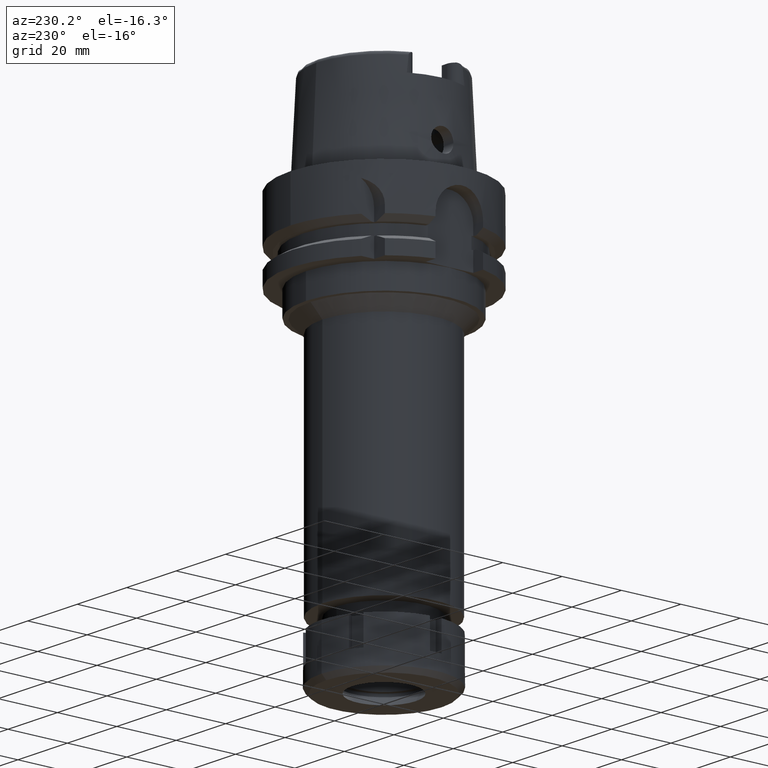
[diagram: clean part render]
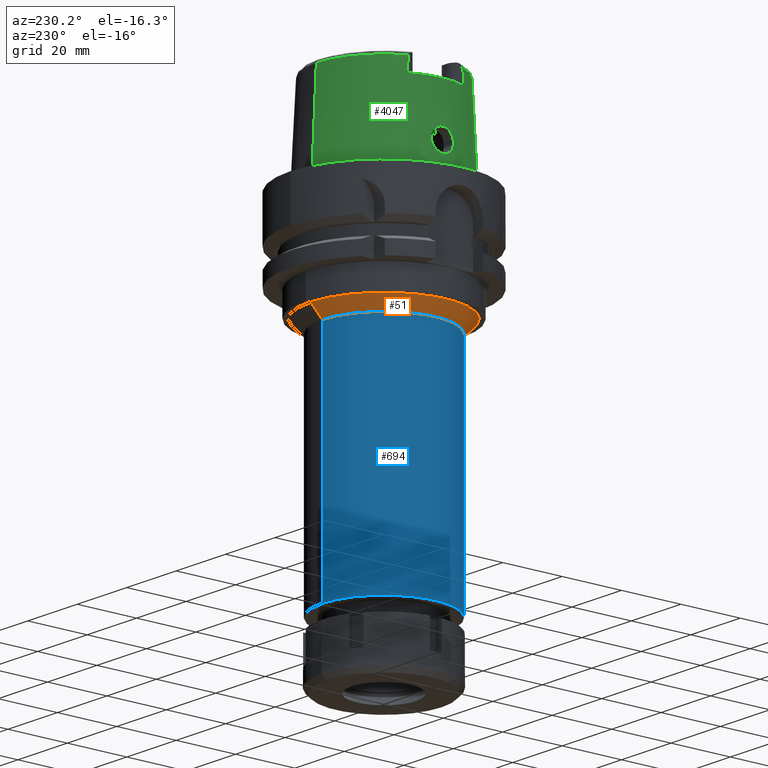
[diagram: same view with three faces highlighted in distinct colors, each labeled with its STEP entity id]
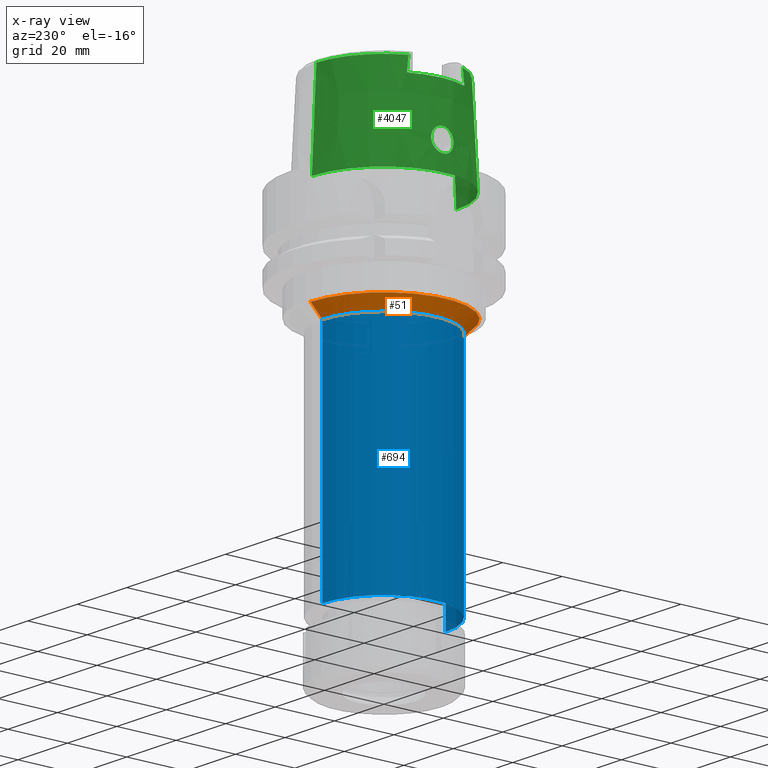
[diagram: x-ray of the same camera — body ghosted, the three highlighted faces saturated]
A machine part, auxiliary view with three faces highlighted in distinct colors.
The next image is the same camera in x-ray (body ghosted, the three faces saturated) — at least one of them is partly hidden behind the body in this view.
Their STEP definitions:

[orange] entity #51 — the highlighted conical surface has half-angle 45 deg.
#51 = ADVANCED_FACE ( 'NONE', ( #1762 ), #826, .T. ) ;
#122 = EDGE_LOOP ( 'NONE', ( #4546, #2845, #656, #3746 ) ) ;
#131 = CARTESIAN_POINT ( 'NONE',  ( 0.0000000000000000000, 20.75000000000000000, -38.00000000000000000 ) ) ;
#173 = CARTESIAN_POINT ( 'NONE',  ( 0.0000000000000000000, 24.75000000000000000, -34.00000000000000000 ) ) ;
#246 = VECTOR ( 'NONE', #2101, 1000.000000000000114 ) ;
#434 = CARTESIAN_POINT ( 'NONE',  ( 0.0000000000000000000, -20.75000000000000000, -38.00000000000000000 ) ) ;
#625 = DIRECTION ( 'NONE',  ( 0.0000000000000000000, -1.000000000000000000, 0.0000000000000000000 ) ) ;
#656 = ORIENTED_EDGE ( 'NONE', *, *, #6002, .T. ) ;
#826 = CONICAL_SURFACE ( 'NONE', #2184, 22.75000000000000000, 0.7853981633972997312 ) ;
#990 = CARTESIAN_POINT ( 'NONE',  ( 0.0000000000000000000, 0.0000000000000000000, -34.00000000000000000 ) ) ;
#1133 = CIRCLE ( 'NONE', #5057, 20.75000000000000000 ) ;
#1162 = EDGE_CURVE ( 'NONE', #4443, #2740, #1133, .T. ) ;
#1227 = CARTESIAN_POINT ( 'NONE',  ( 0.0000000000000000000, 24.75000000000000000, -34.00000000000000000 ) ) ;
#1371 = CARTESIAN_POINT ( 'NONE',  ( 0.0000000000000000000, -24.75000000000000000, -34.00000000000000000 ) ) ;
#1473 = CARTESIAN_POINT ( 'NONE',  ( 0.0000000000000000000, 0.0000000000000000000, -36.00000000000000000 ) ) ;
#1530 = VECTOR ( 'NONE', #4044, 1000.000000000000114 ) ;
#1762 = FACE_OUTER_BOUND ( 'NONE', #122, .T. ) ;
#2057 = VERTEX_POINT ( 'NONE', #3010 ) ;
#2101 = DIRECTION ( 'NONE',  ( 0.0000000000000000000, -0.7071067811865474617, -0.7071067811865474617 ) ) ;
#2173 = CIRCLE ( 'NONE', #5319, 24.75000000000000000 ) ;
#2184 = AXIS2_PLACEMENT_3D ( 'NONE', #1473, #4762, #4629 ) ;
#2384 = VERTEX_POINT ( 'NONE', #173 ) ;
#2537 = CARTESIAN_POINT ( 'NONE',  ( 0.0000000000000000000, 0.0000000000000000000, -38.00000000000000000 ) ) ;
#2596 = LINE ( 'NONE', #1227, #246 ) ;
#2598 = DIRECTION ( 'NONE',  ( 0.0000000000000000000, 0.0000000000000000000, -1.000000000000000000 ) ) ;
#2740 = VERTEX_POINT ( 'NONE', #131 ) ;
#2824 = EDGE_CURVE ( 'NONE', #2384, #2740, #2596, .T. ) ;
#2845 = ORIENTED_EDGE ( 'NONE', *, *, #4160, .F. ) ;
#3010 = CARTESIAN_POINT ( 'NONE',  ( 0.0000000000000000000, -24.75000000000000000, -34.00000000000000000 ) ) ;
#3746 = ORIENTED_EDGE ( 'NONE', *, *, #2824, .T. ) ;
#4044 = DIRECTION ( 'NONE',  ( 0.0000000000000000000, 0.7071067811865474617, -0.7071067811865474617 ) ) ;
#4160 = EDGE_CURVE ( 'NONE', #2057, #4443, #5903, .T. ) ;
#4163 = DIRECTION ( 'NONE',  ( 0.0000000000000000000, -1.000000000000000000, 0.0000000000000000000 ) ) ;
#4443 = VERTEX_POINT ( 'NONE', #434 ) ;
#4546 = ORIENTED_EDGE ( 'NONE', *, *, #1162, .F. ) ;
#4629 = DIRECTION ( 'NONE',  ( 0.0000000000000000000, 1.000000000000000000, 0.0000000000000000000 ) ) ;
#4737 = DIRECTION ( 'NONE',  ( 0.0000000000000000000, 0.0000000000000000000, -1.000000000000000000 ) ) ;
#4762 = DIRECTION ( 'NONE',  ( 0.0000000000000000000, 0.0000000000000000000, 1.000000000000000000 ) ) ;
#5057 = AXIS2_PLACEMENT_3D ( 'NONE', #2537, #2598, #625 ) ;
#5319 = AXIS2_PLACEMENT_3D ( 'NONE', #990, #4737, #4163 ) ;
#5903 = LINE ( 'NONE', #1371, #1530 ) ;
#6002 = EDGE_CURVE ( 'NONE', #2057, #2384, #2173, .T. ) ;

[blue] entity #694 — the highlighted cylindrical surface (partial cylindrical patch) has radius 20.75 mm, axis along (0, 0, 1).
#116 = DIRECTION ( 'NONE',  ( 0.0000000000000000000, 0.0000000000000000000, -1.000000000000000000 ) ) ;
#131 = CARTESIAN_POINT ( 'NONE',  ( 0.0000000000000000000, 20.75000000000000000, -38.00000000000000000 ) ) ;
#344 = VERTEX_POINT ( 'NONE', #4589 ) ;
#398 = VECTOR ( 'NONE', #3643, 1000.000000000000000 ) ;
#434 = CARTESIAN_POINT ( 'NONE',  ( 0.0000000000000000000, -20.75000000000000000, -38.00000000000000000 ) ) ;
#625 = DIRECTION ( 'NONE',  ( 0.0000000000000000000, -1.000000000000000000, 0.0000000000000000000 ) ) ;
#632 = DIRECTION ( 'NONE',  ( 0.0000000000000000000, 0.0000000000000000000, 1.000000000000000000 ) ) ;
#694 = ADVANCED_FACE ( 'NONE', ( #5142 ), #932, .T. ) ;
#927 = CARTESIAN_POINT ( 'NONE',  ( 0.0000000000000000000, 20.75000000000000000, -38.00000000000000000 ) ) ;
#932 = CYLINDRICAL_SURFACE ( 'NONE', #5239, 20.75000000000000000 ) ;
#988 = DIRECTION ( 'NONE',  ( 0.0000000000000000000, 0.0000000000000000000, 1.000000000000000000 ) ) ;
#1133 = CIRCLE ( 'NONE', #5057, 20.75000000000000000 ) ;
#1162 = EDGE_CURVE ( 'NONE', #4443, #2740, #1133, .T. ) ;
#1408 = CARTESIAN_POINT ( 'NONE',  ( 0.0000000000000000000, -20.75000000000000000, -38.00000000000000000 ) ) ;
#1982 = DIRECTION ( 'NONE',  ( 0.0000000000000000000, 1.000000000000000000, 0.0000000000000000000 ) ) ;
#2121 = ORIENTED_EDGE ( 'NONE', *, *, #5371, .F. ) ;
#2336 = DIRECTION ( 'NONE',  ( 0.0000000000000000000, 1.000000000000000000, 0.0000000000000000000 ) ) ;
#2453 = LINE ( 'NONE', #927, #5175 ) ;
#2537 = CARTESIAN_POINT ( 'NONE',  ( 0.0000000000000000000, 0.0000000000000000000, -38.00000000000000000 ) ) ;
#2572 = ORIENTED_EDGE ( 'NONE', *, *, #3826, .T. ) ;
#2598 = DIRECTION ( 'NONE',  ( 0.0000000000000000000, 0.0000000000000000000, -1.000000000000000000 ) ) ;
#2740 = VERTEX_POINT ( 'NONE', #131 ) ;
#2819 = CARTESIAN_POINT ( 'NONE',  ( 0.0000000000000000000, 0.0000000000000000000, -114.5000000000000000 ) ) ;
#2913 = ORIENTED_EDGE ( 'NONE', *, *, #1162, .T. ) ;
#3643 = DIRECTION ( 'NONE',  ( 0.0000000000000000000, 0.0000000000000000000, -1.000000000000000000 ) ) ;
#3699 = LINE ( 'NONE', #1408, #398 ) ;
#3826 = EDGE_CURVE ( 'NONE', #2740, #4242, #2453, .T. ) ;
#4091 = AXIS2_PLACEMENT_3D ( 'NONE', #2819, #988, #2336 ) ;
#4242 = VERTEX_POINT ( 'NONE', #5037 ) ;
#4443 = VERTEX_POINT ( 'NONE', #434 ) ;
#4589 = CARTESIAN_POINT ( 'NONE',  ( 0.0000000000000000000, -20.75000000000000000, -114.5000000000000000 ) ) ;
#4686 = EDGE_CURVE ( 'NONE', #4242, #344, #5747, .T. ) ;
#4879 = EDGE_LOOP ( 'NONE', ( #5686, #2121, #2913, #2572 ) ) ;
#5037 = CARTESIAN_POINT ( 'NONE',  ( 0.0000000000000000000, 20.75000000000000000, -114.5000000000000000 ) ) ;
#5057 = AXIS2_PLACEMENT_3D ( 'NONE', #2537, #2598, #625 ) ;
#5142 = FACE_OUTER_BOUND ( 'NONE', #4879, .T. ) ;
#5174 = CARTESIAN_POINT ( 'NONE',  ( 0.0000000000000000000, 0.0000000000000000000, -134.9499999999999886 ) ) ;
#5175 = VECTOR ( 'NONE', #116, 1000.000000000000000 ) ;
#5239 = AXIS2_PLACEMENT_3D ( 'NONE', #5174, #632, #1982 ) ;
#5371 = EDGE_CURVE ( 'NONE', #4443, #344, #3699, .T. ) ;
#5686 = ORIENTED_EDGE ( 'NONE', *, *, #4686, .T. ) ;
#5747 = CIRCLE ( 'NONE', #4091, 20.75000000000000000 ) ;

[green] entity #4047 — the highlighted conical surface has half-angle 2.862 deg.
#5 = CARTESIAN_POINT ( 'NONE',  ( -20.86999859286000003, -9.145656550786000594, 30.58059438464999857 ) ) ;
#25 = CARTESIAN_POINT ( 'NONE',  ( -23.91154385147101991, 2.246415864612333113, 5.987214237527558325 ) ) ;
#30 = DIRECTION ( 'NONE',  ( 8.032179027582384478E-05, -0.04993928193351242217, -0.9987522523971473776 ) ) ;
#44 = DIRECTION ( 'NONE',  ( -8.032179027593385064E-05, 0.04993928193351242217, -0.9987522523971473776 ) ) ;
#96 = DIRECTION ( 'NONE',  ( 0.0000000000000000000, -1.000000000000000000, 0.0000000000000000000 ) ) ;
#119 = CARTESIAN_POINT ( 'NONE',  ( -23.56097796872711569, 3.013422431564767301, 11.24541844972351967 ) ) ;
#145 = CARTESIAN_POINT ( 'NONE',  ( -20.86999859286000003, -9.150003160546999581, 30.54568941686000016 ) ) ;
#177 = CARTESIAN_POINT ( 'NONE',  ( -23.62277834053297099, -1.989116349047103771, 12.18120550144907099 ) ) ;
#186 = CARTESIAN_POINT ( 'NONE',  ( -23.63217384778251784, 1.797799038878905353, 12.29153530704914310 ) ) ;
#218 = CARTESIAN_POINT ( 'NONE',  ( -23.61879524019170518, 2.057754103071768093, 12.13500044366762332 ) ) ;
#247 = CARTESIAN_POINT ( 'NONE',  ( -23.64438541373286995, 1.532003910011365821, 12.42430358847551375 ) ) ;
#253 = AXIS2_PLACEMENT_3D ( 'NONE', #5634, #2403, #96 ) ;
#266 = CARTESIAN_POINT ( 'NONE',  ( -20.87000040551000168, 9.149999089200999691, 30.54560915661999942 ) ) ;
#280 = CARTESIAN_POINT ( 'NONE',  ( -23.56160331951297593, -3.015592931835976209, 11.23304431777762069 ) ) ;
#285 = ORIENTED_EDGE ( 'NONE', *, *, #367, .F. ) ;
#292 = VERTEX_POINT ( 'NONE', #3001 ) ;
#310 = CARTESIAN_POINT ( 'NONE',  ( -23.60286927383450006, -2.335576044572893917, 11.93450876219025503 ) ) ;
#313 = VERTEX_POINT ( 'NONE', #5283 ) ;
#341 = CARTESIAN_POINT ( 'NONE',  ( -23.58453728877813305, -3.739856244324136103, 8.718110060408626794 ) ) ;
#358 = CARTESIAN_POINT ( 'NONE',  ( -20.86979791523000216, 9.115619747644000626, 30.82498808693000214 ) ) ;
#367 = EDGE_CURVE ( 'NONE', #292, #2829, #4125, .T. ) ;
#373 = CARTESIAN_POINT ( 'NONE',  ( -23.53944903743411388, -3.475538857239880652, 10.40825844921891097 ) ) ;
#376 = CARTESIAN_POINT ( 'NONE',  ( -20.86999931535000385, -9.702216590560999165, 26.00000000000000000 ) ) ;
#387 = CARTESIAN_POINT ( 'NONE',  ( -24.03360035032514830, 0.9587416550654760394, 5.338922568762506593 ) ) ;
#401 = CARTESIAN_POINT ( 'NONE',  ( -23.57822001618234964, -2.742193815974984350, 11.55833520910058176 ) ) ;
#418 = CARTESIAN_POINT ( 'NONE',  ( -23.95890133145891809, 1.832950945505612328, 5.726472960043197169 ) ) ;
#448 = CARTESIAN_POINT ( 'NONE',  ( -23.97390151265888392, 1.680141703038961154, 5.646953479267113885 ) ) ;
#458 = CARTESIAN_POINT ( 'NONE',  ( -23.61434002016870082, -2.137343269133652246, 12.08185038945973488 ) ) ;
#479 = CARTESIAN_POINT ( 'NONE',  ( -23.57982250563416926, 3.750067514026163895, 8.777281901875120695 ) ) ;
#534 = EDGE_CURVE ( 'NONE', #2829, #3041, #1780, .T. ) ;
#535 = ORIENTED_EDGE ( 'NONE', *, *, #2571, .T. ) ;
#561 = CARTESIAN_POINT ( 'NONE',  ( -24.05252611746999847, 7.219293415727999012E-14, 5.250000000000000000 ) ) ;
#587 = CARTESIAN_POINT ( 'NONE',  ( -20.87000000000000099, 9.702213322398998585, 26.00000000000000000 ) ) ;
#634 = EDGE_CURVE ( 'NONE', #2719, #5383, #5522, .T. ) ;
#642 = CARTESIAN_POINT ( 'NONE',  ( -23.54701787177269168, 3.273004262382448015, 10.83388854689287051 ) ) ;
#679 = CARTESIAN_POINT ( 'NONE',  ( -23.65916300598690114, 1.131583512391745261, 12.57576496432657187 ) ) ;
#710 = CARTESIAN_POINT ( 'NONE',  ( -23.64838805044968595, 1.431974298358375641, 12.46583181918364502 ) ) ;
#730 = EDGE_CURVE ( 'NONE', #5645, #2954, #5154, .T. ) ;
#742 = AXIS2_PLACEMENT_3D ( 'NONE', #3996, #5873, #1598 ) ;
#744 = CARTESIAN_POINT ( 'NONE',  ( -23.58843959287474945, 2.579654212983625960, 11.72204698606656592 ) ) ;
#748 = VERTEX_POINT ( 'NONE', #2477 ) ;
#749 = CARTESIAN_POINT ( 'NONE',  ( -23.85411257869707313, -2.630145024481233218, 6.327002802097363876 ) ) ;
#777 = CARTESIAN_POINT ( 'NONE',  ( -23.94785021111779244, 1.936136057970468061, 5.786113297444786419 ) ) ;
#785 = CARTESIAN_POINT ( 'NONE',  ( -23.58900414614371499, -2.568399165515247606, 11.73511503743993067 ) ) ;
#791 = DIRECTION ( 'NONE',  ( -0.9068002397791221636, -0.4215605829967106200, 0.0000000000000000000 ) ) ;
#816 = CARTESIAN_POINT ( 'NONE',  ( -23.68855649572684285, -3.450350392954787182, 7.530746330589260573 ) ) ;
#828 = CARTESIAN_POINT ( 'NONE',  ( -23.67751368057999883, 0.0000000000000000000, 12.75000000000000000 ) ) ;
#845 = CARTESIAN_POINT ( 'NONE',  ( -23.53886077267469901, -3.504554062487795996, 10.33504077016843326 ) ) ;
#864 = AXIS2_PLACEMENT_3D ( 'NONE', #5986, #3149, #791 ) ;
#875 = CARTESIAN_POINT ( 'NONE',  ( -23.54630226441298646, -3.287552103202700415, 10.82047937006739780 ) ) ;
#878 = CARTESIAN_POINT ( 'NONE',  ( -20.87000000000000099, -9.517135092905938620, 27.56041024059991429 ) ) ;
#891 = CARTESIAN_POINT ( 'NONE',  ( -23.76110843536370609, 3.139261242115892081, 6.948752512164946715 ) ) ;
#907 = CARTESIAN_POINT ( 'NONE',  ( -20.86999859286000003, -9.150003160546999581, 30.54568941686000016 ) ) ;
#918 = CARTESIAN_POINT ( 'NONE',  ( -23.99375375827120394, 1.454895484258881933, 5.543726889118262946 ) ) ;
#950 = ORIENTED_EDGE ( 'NONE', *, *, #5687, .T. ) ;
#960 = CARTESIAN_POINT ( 'NONE',  ( -20.86998097500999805, -9.136997528974001526, 30.65032563420000145 ) ) ;
#982 = CARTESIAN_POINT ( 'NONE',  ( -23.73431982039916477, 3.262906292926556873, 7.150587074111498964 ) ) ;
#1031 = LINE ( 'NONE', #2003, #2753 ) ;
#1089 = CARTESIAN_POINT ( 'NONE',  ( -23.67751368058000949, 0.2270550855197481788, 12.75000000000000178 ) ) ;
#1099 = B_SPLINE_CURVE_WITH_KNOTS ( 'NONE', 3,
 ( #376, #878, #4606, #907 ),
 .UNSPECIFIED., .F., .F.,
 ( 4, 4 ),
 ( 0.0000000000000000000, 1.000000000000000000 ),
 .UNSPECIFIED. ) ;
#1110 = CARTESIAN_POINT ( 'NONE',  ( -23.66770930210667245, -0.9495237184689347965, 12.66633763498187726 ) ) ;
#1121 = CARTESIAN_POINT ( 'NONE',  ( -23.54570811899810323, 3.703929906169332043, 9.598605068418329722 ) ) ;
#1157 = CARTESIAN_POINT ( 'NONE',  ( -23.54900849258930506, 3.721295030629215628, 9.478473824204316500 ) ) ;
#1179 = FACE_BOUND ( 'NONE', #4108, .T. ) ;
#1189 = CARTESIAN_POINT ( 'NONE',  ( -23.95646170837670752, -1.853837862018264504, 5.739666730205243539 ) ) ;
#1216 = CARTESIAN_POINT ( 'NONE',  ( -23.67506692396757728, 0.4637167554721483564, 12.72933692538576445 ) ) ;
#1222 = CARTESIAN_POINT ( 'NONE',  ( -23.57602942107117627, -2.777746268207485603, 11.51949067008295735 ) ) ;
#1251 = CARTESIAN_POINT ( 'NONE',  ( -23.67256934593881823, 3.509037656622230994, 7.676726614427885842 ) ) ;
#1256 = CARTESIAN_POINT ( 'NONE',  ( -23.58205216207072752, -2.680317364813342706, 11.62268559708088134 ) ) ;
#1267 = EDGE_LOOP ( 'NONE', ( #4820, #285, #3320, #950, #535, #5495, #3356, #3146, #4932, #5268 ) ) ;
#1285 = CARTESIAN_POINT ( 'NONE',  ( -23.93346570588319366, -2.057731046173866485, 5.864986635515427871 ) ) ;
#1313 = CARTESIAN_POINT ( 'NONE',  ( -23.93747828835347136, -2.023758500836733809, 5.842887484416357857 ) ) ;
#1345 = CARTESIAN_POINT ( 'NONE',  ( -23.53967805942447100, -3.465942326591773703, 10.43170616131409645 ) ) ;
#1365 = CIRCLE ( 'NONE', #864, 23.01499170873999134 ) ;
#1391 = CARTESIAN_POINT ( 'NONE',  ( -23.98100747843093927, 1.604224121340226406, 5.609676871957636202 ) ) ;
#1413 = CARTESIAN_POINT ( 'NONE',  ( -23.63472685403869988, 3.632543205256003827, 8.060088688214488428 ) ) ;
#1444 = CARTESIAN_POINT ( 'NONE',  ( -24.05252611746999847, 7.219293415727999012E-14, 5.250000000000000000 ) ) ;
#1535 = AXIS2_PLACEMENT_3D ( 'NONE', #3165, #2848, #5601 ) ;
#1537 = CARTESIAN_POINT ( 'NONE',  ( -20.86979784206000232, -9.115619992157000695, 30.82498881557000203 ) ) ;
#1573 = CARTESIAN_POINT ( 'NONE',  ( -23.57093098231322514, 2.851320387659082023, 11.45124733491616986 ) ) ;
#1577 = CARTESIAN_POINT ( 'NONE',  ( -24.01163167211777960, -1.217836282261358649, 5.452284111519859700 ) ) ;
#1597 = CARTESIAN_POINT ( 'NONE',  ( 0.0000000000000000000, -24.31503482328999866, -3.410605131648000255E-13 ) ) ;
#1598 = DIRECTION ( 'NONE',  ( 0.0000000000000000000, -1.000000000000000000, 0.0000000000000000000 ) ) ;
#1604 = CARTESIAN_POINT ( 'NONE',  ( -23.54069486723661342, 3.429604093076467741, 10.51710758013427238 ) ) ;
#1636 = CARTESIAN_POINT ( 'NONE',  ( -23.66466820836483720, 0.9480137373963898328, 12.63043733676766678 ) ) ;
#1641 = CARTESIAN_POINT ( 'NONE',  ( -24.02790150521489920, -0.9499384788517649669, 5.370183118794526145 ) ) ;
#1669 = CARTESIAN_POINT ( 'NONE',  ( -24.00419298716570893, -1.321282608959684968, 5.490234096221093374 ) ) ;
#1696 = CARTESIAN_POINT ( 'NONE',  ( -23.74548669683055380, 3.212405278546261123, 7.065045546250785513 ) ) ;
#1701 = CARTESIAN_POINT ( 'NONE',  ( -23.79537367589226804, -2.969088110280465376, 6.708534476834485005 ) ) ;
#1735 = CARTESIAN_POINT ( 'NONE',  ( -23.93507611393683376, -2.044143431529464205, 5.856110134686709934 ) ) ;
#1736 = CIRCLE ( 'NONE', #253, 22.77198729362000051 ) ;
#1763 = CARTESIAN_POINT ( 'NONE',  ( -23.77366573555783447, -3.079179372706924323, 6.858788694427325083 ) ) ;
#1780 = B_SPLINE_CURVE_WITH_KNOTS ( 'NONE', 3,
 ( #4873, #2131, #4842, #587 ),
 .UNSPECIFIED., .F., .F.,
 ( 4, 4 ),
 ( 0.0000000000000000000, 1.000000000000000000 ),
 .UNSPECIFIED. ) ;
#1795 = CARTESIAN_POINT ( 'NONE',  ( -23.53933400710882395, -3.626018558690636606, 9.964348248569118383 ) ) ;
#1820 = CARTESIAN_POINT ( 'NONE',  ( -23.57177425104810808, -2.847066704545725635, 11.44162680370486207 ) ) ;
#1839 = CARTESIAN_POINT ( 'NONE',  ( -23.56278152568586037, 3.748202034570357277, 9.119855229855424739 ) ) ;
#1867 = CARTESIAN_POINT ( 'NONE',  ( -23.75120232812136223, 3.186135203672332494, 7.021841446137443654 ) ) ;
#1875 = CARTESIAN_POINT ( 'NONE',  ( -23.63968782729862284, -1.640295639478581036, 12.37324290433914165 ) ) ;
#1892 = CARTESIAN_POINT ( 'NONE',  ( -23.99475744535375554, 1.442563801209166829, 5.538561806624021422 ) ) ;
#1990 = CARTESIAN_POINT ( 'NONE',  ( -23.55001240182648203, 3.213465957024137509, 10.93679277012308404 ) ) ;
#2003 = CARTESIAN_POINT ( 'NONE',  ( 0.002481821280839999633, 22.77198688789000158, 30.85992712280000205 ) ) ;
#2058 = CARTESIAN_POINT ( 'NONE',  ( -23.62000083422311647, 2.035445433864388587, 12.14960492259426950 ) ) ;
#2092 = CARTESIAN_POINT ( 'NONE',  ( -23.61157059474677666, 2.189819446293475469, 12.04669119026246982 ) ) ;
#2097 = CARTESIAN_POINT ( 'NONE',  ( -24.03376450813277643, -0.8302585185817531466, 5.341039448943616819 ) ) ;
#2131 = CARTESIAN_POINT ( 'NONE',  ( -20.87000000000000099, 9.332993010319471594, 29.07609872775757864 ) ) ;
#2157 = CARTESIAN_POINT ( 'NONE',  ( -23.82389824344734564, -2.813305834481979240, 6.517460154686483875 ) ) ;
#2183 = CARTESIAN_POINT ( 'NONE',  ( -23.57120107787327257, -3.749755776624094761, 8.948568822377671594 ) ) ;
#2221 = CARTESIAN_POINT ( 'NONE',  ( -23.92138628481675156, -2.158527707785759198, 5.931742582950932707 ) ) ;
#2251 = CARTESIAN_POINT ( 'NONE',  ( -23.53958853792059713, -3.469584282982776546, 10.42286580929461692 ) ) ;
#2267 = CARTESIAN_POINT ( 'NONE',  ( -23.69494003767866275, 3.426640080169074842, 7.473094819910302888 ) ) ;
#2279 = CARTESIAN_POINT ( 'NONE',  ( -23.87154924211943552, -2.517874083861505241, 6.220808954169918970 ) ) ;
#2296 = CARTESIAN_POINT ( 'NONE',  ( -23.68361486062180532, 3.468774132770216401, 7.575167304614367048 ) ) ;
#2317 = EDGE_CURVE ( 'NONE', #5383, #2719, #5794, .T. ) ;
#2333 = CARTESIAN_POINT ( 'NONE',  ( -23.67837071411394945, 3.488075904229264612, 7.622935984954517075 ) ) ;
#2359 = CARTESIAN_POINT ( 'NONE',  ( -23.70700908731783230, 3.379377894197945764, 7.369840516221876747 ) ) ;
#2403 = DIRECTION ( 'NONE',  ( 0.0000000000000000000, 0.0000000000000000000, -1.000000000000000000 ) ) ;
#2477 = CARTESIAN_POINT ( 'NONE',  ( -20.86999931535000385, -9.702216590560999165, 26.00000000000000000 ) ) ;
#2491 = CARTESIAN_POINT ( 'NONE',  ( -24.01734809996271380, -1.128669461456338841, 5.423343925822930345 ) ) ;
#2509 = AXIS2_PLACEMENT_3D ( 'NONE', #6048, #5531, #5560 ) ;
#2549 = CARTESIAN_POINT ( 'NONE',  ( -23.64936403248346508, 1.407275569513849023, 12.47593780962662358 ) ) ;
#2553 = CARTESIAN_POINT ( 'NONE',  ( -24.05252611747000202, -0.2332103147731994230, 5.249999999999995559 ) ) ;
#2571 = EDGE_CURVE ( 'NONE', #4386, #4802, #3980, .T. ) ;
#2618 = CARTESIAN_POINT ( 'NONE',  ( -23.58633424706026105, 2.612815130271286979, 11.68996907073824154 ) ) ;
#2624 = CARTESIAN_POINT ( 'NONE',  ( -23.78102517926600257, -3.042785094249720323, 6.807340126541109981 ) ) ;
#2646 = CARTESIAN_POINT ( 'NONE',  ( -23.99223591124651733, 1.473417737880758027, 5.551543009035936116 ) ) ;
#2651 = CARTESIAN_POINT ( 'NONE',  ( -23.59448743840529517, -2.477563781726625169, 11.81765971133723525 ) ) ;
#2677 = CARTESIAN_POINT ( 'NONE',  ( -23.65754809391081537, -3.566088188122623404, 7.809427656165223830 ) ) ;
#2710 = CARTESIAN_POINT ( 'NONE',  ( -23.53925035809208666, -3.484397382973506652, 10.38632955576335526 ) ) ;
#2719 = VERTEX_POINT ( 'NONE', #561 ) ;
#2726 = CARTESIAN_POINT ( 'NONE',  ( -20.86998014063999918, 9.137000168786000742, 30.65036215717999823 ) ) ;
#2737 = CARTESIAN_POINT ( 'NONE',  ( -23.56910549796507226, -2.890900241439563700, 11.38948586686952247 ) ) ;
#2753 = VECTOR ( 'NONE', #44, 1000.000000000000000 ) ;
#2754 = CARTESIAN_POINT ( 'NONE',  ( -23.76427259038197093, 3.124070705850066076, 6.925694964529036213 ) ) ;
#2769 = CARTESIAN_POINT ( 'NONE',  ( -23.61138185679437029, -2.188928556161625849, 12.04546366114754363 ) ) ;
#2786 = CARTESIAN_POINT ( 'NONE',  ( -23.99515738581213853, 1.437624465041001942, 5.536504739942461839 ) ) ;
#2801 = CARTESIAN_POINT ( 'NONE',  ( 0.0000000000000000000, 24.31503482328999866, -7.389644451905000534E-13 ) ) ;
#2802 = CARTESIAN_POINT ( 'NONE',  ( -20.87000000000000099, 9.702213322398998585, 26.00000000000000000 ) ) ;
#2815 = CARTESIAN_POINT ( 'NONE',  ( -23.88313561354195258, 2.454459664355252091, 6.151034553774693769 ) ) ;
#2822 = CARTESIAN_POINT ( 'NONE',  ( -20.86989311876999764, -9.124126494659000386, 30.75512926197999874 ) ) ;
#2829 = VERTEX_POINT ( 'NONE', #3577 ) ;
#2848 = DIRECTION ( 'NONE',  ( 0.0000000000000000000, 0.0000000000000000000, -1.000000000000000000 ) ) ;
#2933 = CARTESIAN_POINT ( 'NONE',  ( -23.64687499785082991, -1.469739467179422832, 12.45013971467047220 ) ) ;
#2944 = CARTESIAN_POINT ( 'NONE',  ( -23.58493054382509158, 2.634790026821788977, 11.66844861690521107 ) ) ;
#2954 = VERTEX_POINT ( 'NONE', #5987 ) ;
#2963 = EDGE_CURVE ( 'NONE', #748, #5645, #1099, .T. ) ;
#2968 = CARTESIAN_POINT ( 'NONE',  ( -23.67751368057999883, 0.0000000000000000000, 12.75000000000000000 ) ) ;
#2979 = CARTESIAN_POINT ( 'NONE',  ( -23.65230061830052577, 1.330755446594199309, 12.50620537753291828 ) ) ;
#3001 = CARTESIAN_POINT ( 'NONE',  ( -20.86974110889999778, 9.111383545078000523, 30.85992740080000019 ) ) ;
#3013 = CARTESIAN_POINT ( 'NONE',  ( -23.55879114936610108, 3.744994026490189754, 9.209162913292500363 ) ) ;
#3041 = VERTEX_POINT ( 'NONE', #2802 ) ;
#3042 = CARTESIAN_POINT ( 'NONE',  ( -23.55530580508844096, 3.738557622454079521, 9.298840057470723508 ) ) ;
#3076 = CARTESIAN_POINT ( 'NONE',  ( -23.65026006151634519, 1.384329083182357145, 12.48519848290801804 ) ) ;
#3082 = CARTESIAN_POINT ( 'NONE',  ( -23.57429801705062999, -3.748539602299496121, 8.891536179535661333 ) ) ;
#3112 = CARTESIAN_POINT ( 'NONE',  ( -23.84336415999447212, 2.695641915489059404, 6.393037920340952418 ) ) ;
#3118 = CARTESIAN_POINT ( 'NONE',  ( -23.58328928351684439, -2.660386235635937791, 11.64289685430189714 ) ) ;
#3144 = CARTESIAN_POINT ( 'NONE',  ( -23.71825004758725797, -3.331225363073785140, 7.276845018776636032 ) ) ;
#3146 = ORIENTED_EDGE ( 'NONE', *, *, #730, .F. ) ;
#3149 = DIRECTION ( 'NONE',  ( 0.0000000000000000000, 0.0000000000000000000, -1.000000000000000000 ) ) ;
#3165 = CARTESIAN_POINT ( 'NONE',  ( 0.0000000000000000000, 0.0000000000000000000, 30.85992712280000205 ) ) ;
#3170 = CARTESIAN_POINT ( 'NONE',  ( -23.85610595830172187, -2.617617343394452956, 6.314733474427670856 ) ) ;
#3172 = EDGE_CURVE ( 'NONE', #3390, #2954, #1736, .T. ) ;
#3194 = CIRCLE ( 'NONE', #1535, 22.77198729362000407 ) ;
#3196 = CARTESIAN_POINT ( 'NONE',  ( -0.002481821280835999795, -22.77198688789000158, 30.85992712280000205 ) ) ;
#3200 = CARTESIAN_POINT ( 'NONE',  ( -23.54167622164515450, -3.387205666518641411, 10.62142259277983136 ) ) ;
#3220 = CARTESIAN_POINT ( 'NONE',  ( -23.59513519482561250, 3.730063048733887943, 8.542738687531436170 ) ) ;
#3248 = CARTESIAN_POINT ( 'NONE',  ( -23.98860805338280144, 1.516805413141823378, 5.570264418925358285 ) ) ;
#3274 = CARTESIAN_POINT ( 'NONE',  ( -23.79346435753717870, 2.978198942467662036, 6.717901223936388000 ) ) ;
#3320 = ORIENTED_EDGE ( 'NONE', *, *, #4648, .T. ) ;
#3356 = ORIENTED_EDGE ( 'NONE', *, *, #3172, .T. ) ;
#3364 = ORIENTED_EDGE ( 'NONE', *, *, #634, .F. ) ;
#3390 = VERTEX_POINT ( 'NONE', #4962 ) ;
#3439 = CARTESIAN_POINT ( 'NONE',  ( -23.53728676371606099, 3.562651700364598994, 10.19724764933794603 ) ) ;
#3443 = CARTESIAN_POINT ( 'NONE',  ( -23.99729627407344879, -1.411048636289928604, 5.525572656865528565 ) ) ;
#3469 = CARTESIAN_POINT ( 'NONE',  ( -23.53973866395645587, 3.463642749355579031, 10.43726852335501221 ) ) ;
#3503 = CARTESIAN_POINT ( 'NONE',  ( -23.54351706506164987, 3.352611893030811974, 10.68100997043681843 ) ) ;
#3509 = CARTESIAN_POINT ( 'NONE',  ( -24.00084008237205779, -1.365466169010104425, 5.507400335313762163 ) ) ;
#3534 = CARTESIAN_POINT ( 'NONE',  ( -23.61751856524482562, 2.081228755273695441, 12.11946245286710067 ) ) ;
#3539 = CARTESIAN_POINT ( 'NONE',  ( -23.98780141253753229, -1.529850488969720423, 5.574348390458776947 ) ) ;
#3556 = CARTESIAN_POINT ( 'NONE',  ( -20.87000040551000168, 9.145652229695999225, 30.58051608323999915 ) ) ;
#3571 = CARTESIAN_POINT ( 'NONE',  ( -23.70816558055356182, -3.373465490191679184, 7.360148671829014333 ) ) ;
#3577 = CARTESIAN_POINT ( 'NONE',  ( -20.87000040551000168, 9.149999089200999691, 30.54560915661999942 ) ) ;
#3605 = CARTESIAN_POINT ( 'NONE',  ( -23.53847087989566944, -3.572101077239594691, 10.14300631105235873 ) ) ;
#3631 = CARTESIAN_POINT ( 'NONE',  ( -23.53837760069588469, -3.542815971463640246, 10.23200643823282796 ) ) ;
#3653 = LINE ( 'NONE', #3196, #4978 ) ;
#3657 = CARTESIAN_POINT ( 'NONE',  ( -23.85298089870727267, -2.637218653444303396, 6.333984785355792901 ) ) ;
#3688 = CARTESIAN_POINT ( 'NONE',  ( -23.67751368058000239, -0.4544753472559154850, 12.75000000000000000 ) ) ;
#3706 = CARTESIAN_POINT ( 'NONE',  ( -23.82549564032127876, 2.800913594573239962, 6.505203384463845495 ) ) ;
#3747 = CARTESIAN_POINT ( 'NONE',  ( -23.62817009328244211, -1.885504390013278631, 12.24383666416452954 ) ) ;
#3767 = CARTESIAN_POINT ( 'NONE',  ( -23.62408174916624759, 3.661711994909767842, 8.181858917920301622 ) ) ;
#3871 = CARTESIAN_POINT ( 'NONE',  ( -23.53979351381235929, 3.461509763712810273, 10.44239227256786151 ) ) ;
#3901 = CARTESIAN_POINT ( 'NONE',  ( -23.62275659639532677, 1.983760324831608468, 12.18265870505774018 ) ) ;
#3937 = CARTESIAN_POINT ( 'NONE',  ( -23.62941725490690104, 1.853914893949967668, 12.26036247316766392 ) ) ;
#3969 = CARTESIAN_POINT ( 'NONE',  ( -23.66772665413035170, 0.8260456023253619495, 12.65995497868030739 ) ) ;
#3980 = CIRCLE ( 'NONE', #2509, 24.31503482328999866 ) ;
#3996 = CARTESIAN_POINT ( 'NONE',  ( 0.0000000000000000000, 0.0000000000000000000, 15.42996356139999925 ) ) ;
#4002 = CARTESIAN_POINT ( 'NONE',  ( -23.65618102136552636, 1.223519750324070232, 12.54583135858821663 ) ) ;
#4023 = CARTESIAN_POINT ( 'NONE',  ( -20.86989333338000208, 9.124126689038000393, 30.75511924111000184 ) ) ;
#4038 = CARTESIAN_POINT ( 'NONE',  ( -23.85907942046631547, -2.598838323099839531, 6.296470842504173326 ) ) ;
#4047 = ADVANCED_FACE ( 'NONE', ( #5742, #1179 ), #4498, .T. ) ;
#4063 = ORIENTED_EDGE ( 'NONE', *, *, #2317, .F. ) ;
#4073 = CARTESIAN_POINT ( 'NONE',  ( -23.55727397494094788, -3.089636227355778253, 11.12874586896584006 ) ) ;
#4105 = CARTESIAN_POINT ( 'NONE',  ( -23.55631789223329520, -3.749672740655334291, 9.242517987131694923 ) ) ;
#4108 = EDGE_LOOP ( 'NONE', ( #4063, #3364 ) ) ;
#4125 = B_SPLINE_CURVE_WITH_KNOTS ( 'NONE', 3,
 ( #4984, #358, #4023, #2726, #3556, #266 ),
 .UNSPECIFIED., .F., .F.,
 ( 4, 1, 1, 4 ),
 ( 0.0000000000000000000, 0.3333333333333000081, 0.6666666666667000474, 1.000000000000000000 ),
 .UNSPECIFIED. ) ;
#4137 = CARTESIAN_POINT ( 'NONE',  ( -23.73862296462850097, -3.243267977787420708, 7.113464853266033394 ) ) ;
#4165 = CARTESIAN_POINT ( 'NONE',  ( -23.86590124815353064, -2.555122358428070672, 6.254839336274224060 ) ) ;
#4182 = CARTESIAN_POINT ( 'NONE',  ( -23.56555400590841742, 3.749631139604634900, 9.060415933232157215 ) ) ;
#4213 = CARTESIAN_POINT ( 'NONE',  ( -23.77928549044730389, 3.051522805575351160, 6.816916783143770253 ) ) ;
#4244 = CARTESIAN_POINT ( 'NONE',  ( -23.84694261843718976, 2.674164043356542120, 6.371010975576210988 ) ) ;
#4257 = EDGE_CURVE ( 'NONE', #748, #3041, #1365, .T. ) ;
#4335 = CARTESIAN_POINT ( 'NONE',  ( -23.63590703116657821, -1.723181040767153949, 12.33120441850616267 ) ) ;
#4369 = CARTESIAN_POINT ( 'NONE',  ( -23.64333711421565454, -1.554903091166099482, 12.41258936273739089 ) ) ;
#4383 = CARTESIAN_POINT ( 'NONE',  ( -23.99856816874137877, -1.394885509445489502, 5.519045433790244815 ) ) ;
#4386 = VERTEX_POINT ( 'NONE', #2801 ) ;
#4412 = CARTESIAN_POINT ( 'NONE',  ( -23.63991982693346117, 1.634365850394120079, 12.37734992472583961 ) ) ;
#4444 = CARTESIAN_POINT ( 'NONE',  ( -23.62502046585551341, 1.940137780338721418, 12.20928050595685832 ) ) ;
#4448 = CARTESIAN_POINT ( 'NONE',  ( -24.04783571513569029, -0.4716470343295922074, 5.271818786262437939 ) ) ;
#4474 = CARTESIAN_POINT ( 'NONE',  ( -23.64876190097340469, 1.422569725451965583, 12.46970655260211025 ) ) ;
#4498 = CONICAL_SURFACE ( 'NONE', #742, 23.54351105844999736, 0.04996004983832824653 ) ;
#4515 = CARTESIAN_POINT ( 'NONE',  ( -23.60482748592180258, -3.707231853300610780, 8.421927028691674977 ) ) ;
#4543 = CARTESIAN_POINT ( 'NONE',  ( -23.58283486885746427, -2.667704132468768918, 11.63551429115163138 ) ) ;
#4572 = CARTESIAN_POINT ( 'NONE',  ( -23.59610439637926049, -3.723762417161526450, 8.541698652033858252 ) ) ;
#4602 = CARTESIAN_POINT ( 'NONE',  ( -23.75247688662114598, -3.179994172036806344, 7.008853866870613736 ) ) ;
#4606 = CARTESIAN_POINT ( 'NONE',  ( -20.87000000000000099, -9.333063949567938167, 29.07564004621991671 ) ) ;
#4630 = CARTESIAN_POINT ( 'NONE',  ( -23.56979082169771189, -3.750036984073165325, 8.975438790289542723 ) ) ;
#4647 = CARTESIAN_POINT ( 'NONE',  ( -23.83799877289881408, 2.727655428684114813, 6.426276565144361186 ) ) ;
#4648 = EDGE_CURVE ( 'NONE', #292, #313, #3194, .T. ) ;
#4676 = CARTESIAN_POINT ( 'NONE',  ( -24.05252611747000557, 0.4682087618483027902, 5.250000000000009770 ) ) ;
#4684 = CARTESIAN_POINT ( 'NONE',  ( -20.86974104061000190, -9.111384044377000890, 30.85992600295000088 ) ) ;
#4704 = CARTESIAN_POINT ( 'NONE',  ( -23.81480627636162950, 2.861180136209828362, 6.575142443500043399 ) ) ;
#4756 = EDGE_CURVE ( 'NONE', #3390, #4802, #3653, .T. ) ;
#4802 = VERTEX_POINT ( 'NONE', #1597 ) ;
#4808 = CARTESIAN_POINT ( 'NONE',  ( -23.96211499764624264, -1.799536070470562743, 5.709421591826898457 ) ) ;
#4820 = ORIENTED_EDGE ( 'NONE', *, *, #534, .F. ) ;
#4836 = CARTESIAN_POINT ( 'NONE',  ( -23.54014348580858496, 3.448440655341656669, 10.47345738375693713 ) ) ;
#4842 = CARTESIAN_POINT ( 'NONE',  ( -20.87000000000000099, 9.517059732219138368, 27.56089567555091335 ) ) ;
#4867 = CARTESIAN_POINT ( 'NONE',  ( -23.53993040577219631, 3.456309141060314616, 10.45481010226954410 ) ) ;
#4873 = CARTESIAN_POINT ( 'NONE',  ( -20.87000040551000168, 9.149999089200999691, 30.54560915661999942 ) ) ;
#4928 = CARTESIAN_POINT ( 'NONE',  ( -23.67751368057999883, 0.0000000000000000000, 12.75000000000000000 ) ) ;
#4932 = ORIENTED_EDGE ( 'NONE', *, *, #2963, .F. ) ;
#4960 = CARTESIAN_POINT ( 'NONE',  ( -23.59755753211462448, 2.431116186418980973, 11.85586382591647236 ) ) ;
#4962 = CARTESIAN_POINT ( 'NONE',  ( 0.0000000000000000000, -22.77198729362000051, 30.85992712280000205 ) ) ;
#4966 = CARTESIAN_POINT ( 'NONE',  ( -23.83804968213365427, -2.730138444225157279, 6.426279370766438070 ) ) ;
#4978 = VECTOR ( 'NONE', #30, 1000.000000000000000 ) ;
#4984 = CARTESIAN_POINT ( 'NONE',  ( -20.86974110889999778, 9.111383545078000523, 30.85992740080000019 ) ) ;
#4998 = CARTESIAN_POINT ( 'NONE',  ( -23.84848511269249371, 2.664860190787124328, 6.361567375916070688 ) ) ;
#5003 = CARTESIAN_POINT ( 'NONE',  ( -23.69164711137705126, -3.438544630209884989, 7.503368978278591506 ) ) ;
#5029 = CARTESIAN_POINT ( 'NONE',  ( -23.94298929834542378, -1.976175609910681086, 5.812675870302488335 ) ) ;
#5058 = CARTESIAN_POINT ( 'NONE',  ( -23.93249533362502390, -2.065864036292460959, 5.870343702706571243 ) ) ;
#5090 = CARTESIAN_POINT ( 'NONE',  ( -23.69823410075026260, -3.412900177822010495, 7.445778019282126792 ) ) ;
#5105 = CARTESIAN_POINT ( 'NONE',  ( -23.66129350524382957, 3.548529442325619510, 7.784314626151370042 ) ) ;
#5132 = CARTESIAN_POINT ( 'NONE',  ( -23.75810190250878762, 3.153611506489387484, 6.970771463163627502 ) ) ;
#5154 = B_SPLINE_CURVE_WITH_KNOTS ( 'NONE', 3,
 ( #145, #5, #960, #2822, #1537, #4684 ),
 .UNSPECIFIED., .F., .F.,
 ( 4, 1, 1, 4 ),
 ( 0.0000000000000000000, 0.3333333333333000081, 0.6666666666667000474, 1.000000000000000000 ),
 .UNSPECIFIED. ) ;
#5185 = CARTESIAN_POINT ( 'NONE',  ( -20.86999859286000003, -9.150003160546999581, 30.54568941686000016 ) ) ;
#5191 = CARTESIAN_POINT ( 'NONE',  ( -23.72722775097858872, 3.293854948663952786, 7.206456495997836775 ) ) ;
#5268 = ORIENTED_EDGE ( 'NONE', *, *, #4257, .T. ) ;
#5283 = CARTESIAN_POINT ( 'NONE',  ( 0.002481821280839999633, 22.77198688789000158, 30.85992712280000205 ) ) ;
#5300 = CARTESIAN_POINT ( 'NONE',  ( -24.05252611746999847, 7.219293415727999012E-14, 5.250000000000000000 ) ) ;
#5325 = CARTESIAN_POINT ( 'NONE',  ( -23.53850050244914627, 3.633707465304339301, 9.958315797427015781 ) ) ;
#5329 = CARTESIAN_POINT ( 'NONE',  ( -23.94755176922964424, -1.935381427071890759, 5.787867422732845490 ) ) ;
#5357 = CARTESIAN_POINT ( 'NONE',  ( -23.61798605459291522, 2.072660299184127197, 12.12516543797138091 ) ) ;
#5383 = VERTEX_POINT ( 'NONE', #828 ) ;
#5394 = CARTESIAN_POINT ( 'NONE',  ( -23.97821485496940497, -1.637234158128191730, 5.624069072315474038 ) ) ;
#5430 = CARTESIAN_POINT ( 'NONE',  ( -23.90951355811596457, -2.251041480984160348, 5.998259241192845259 ) ) ;
#5456 = CARTESIAN_POINT ( 'NONE',  ( -23.65218889148572501, 3.578284046028100018, 7.876407930359398790 ) ) ;
#5461 = CARTESIAN_POINT ( 'NONE',  ( -23.58088597815305931, -2.699121719854840951, 11.60342152301232588 ) ) ;
#5493 = CARTESIAN_POINT ( 'NONE',  ( -23.88957874103704171, -2.394968960886325160, 6.113755466104794145 ) ) ;
#5495 = ORIENTED_EDGE ( 'NONE', *, *, #4756, .F. ) ;
#5520 = CARTESIAN_POINT ( 'NONE',  ( -23.57913311665574341, -3.745728662664196573, 8.805507684921918710 ) ) ;
#5522 = B_SPLINE_CURVE_WITH_KNOTS ( 'NONE', 3,
 ( #5300, #2553, #4448, #2097, #1641, #2491, #1577, #1669, #3509, #4383, #3443, #3539, #5394, #4808, #1189, #5329, #5029, #1313, #1735, #1285, #5058, #2221, #5430, #5493, #5982, #2279, #4165, #4038, #3170, #749, #3657, #4966, #2157, #5914, #1701, #2624, #1763, #4602, #4137, #3144, #3571, #5090, #5003, #816, #2677, #6036, #4515, #4572, #341, #5520, #3082, #2183, #4630, #4105, #5547, #6008, #1795, #3605, #3631, #845, #2710, #373, #2251, #1345, #3200, #875, #4073, #280, #2737, #1820, #1222, #401, #5461, #1256, #4543, #3118, #785, #2651, #310, #5948, #2769, #458, #177, #3747, #4335, #1875, #4369, #5737, #2933, #1110, #3688, #2968 ),
 .UNSPECIFIED., .F., .F.,
 ( 4, 2, 2, 1, 1, 2, 2, 2, 2, 1, 1, 2, 2, 2, 2, 1, 1, 2, 2, 2, 2, 2, 2, 1, 2, 2, 2, 2, 1, 2, 2, 2, 2, 1, 1, 1, 2, 2, 2, 2, 2, 1, 1, 2, 2, 2, 2, 2, 2, 1, 2, 2, 4 ),
 ( 0.0000000000000000000, 0.06249999999999908407, 0.09374999999999868161, 0.1093749999999985012, 0.1171874999999983485, 0.1210937499999982653, 0.1249999999999981681, 0.1562499999999979183, 0.1718749999999978628, 0.1796874999999978073, 0.1835937499999978073, 0.1855468749999978073, 0.1874999999999978073, 0.2187499999999998890, 0.2343750000000009992, 0.2421875000000014710, 0.2460937500000017208, 0.2480468750000018041, 0.2500000000000018874, 0.2812500000000010547, 0.2968750000000006661, 0.3125000000000002220, 0.3437499999999995559, 0.3593749999999992228, 0.3671874999999990563, 0.3749999999999988898, 0.4374999999999973355, 0.4687499999999966138, 0.4843749999999962252, 0.4921874999999962808, 0.4999999999999963363, 0.5624999999999975575, 0.5937499999999984457, 0.6093749999999988898, 0.6171874999999991118, 0.6210937499999992228, 0.6230468749999991118, 0.6249999999999988898, 0.6874999999999971134, 0.7187499999999962252, 0.7343749999999956701, 0.7421874999999952260, 0.7460937499999950040, 0.7480468749999950040, 0.7499999999999951150, 0.7812499999999956701, 0.7968749999999958922, 0.8124999999999961142, 0.8437499999999965583, 0.8593749999999968914, 0.8671874999999971134, 0.8749999999999972244, 1.000000000000000000 ),
 .UNSPECIFIED. ) ;
#5531 = DIRECTION ( 'NONE',  ( 0.0000000000000000000, 0.0000000000000000000, 1.000000000000000000 ) ) ;
#5547 = CARTESIAN_POINT ( 'NONE',  ( -23.54795032193742088, -3.726728752184138571, 9.483762062732145282 ) ) ;
#5560 = DIRECTION ( 'NONE',  ( 0.0000000000000000000, 1.000000000000000000, 0.0000000000000000000 ) ) ;
#5596 = CARTESIAN_POINT ( 'NONE',  ( -23.56707887070886187, 3.749991367895442629, 9.029115372981230792 ) ) ;
#5601 = DIRECTION ( 'NONE',  ( -0.9164655183265837390, 0.4001136759951928745, 0.0000000000000000000 ) ) ;
#5634 = CARTESIAN_POINT ( 'NONE',  ( 0.0000000000000000000, 0.0000000000000000000, 30.85992712280000205 ) ) ;
#5645 = VERTEX_POINT ( 'NONE', #5185 ) ;
#5647 = CARTESIAN_POINT ( 'NONE',  ( -23.68258070597880760, 3.472606628678538865, 7.584524145419083929 ) ) ;
#5687 = EDGE_CURVE ( 'NONE', #313, #4386, #1031, .T. ) ;
#5737 = CARTESIAN_POINT ( 'NONE',  ( -23.64574074789032920, -1.497428109166144550, 12.43819703325236681 ) ) ;
#5742 = FACE_OUTER_BOUND ( 'NONE', #1267, .T. ) ;
#5750 = CARTESIAN_POINT ( 'NONE',  ( -23.59335060317417287, 2.500906294511826111, 11.79545910480270798 ) ) ;
#5782 = CARTESIAN_POINT ( 'NONE',  ( -23.58431385962907356, 2.644393340230711598, 11.65894364168979003 ) ) ;
#5794 = B_SPLINE_CURVE_WITH_KNOTS ( 'NONE', 3,
 ( #4928, #1089, #1216, #3969, #1636, #679, #4002, #2979, #3076, #2549, #4474, #710, #247, #4412, #186, #3937, #4444, #3901, #2058, #218, #5357, #3534, #2092, #5877, #4960, #5750, #744, #2618, #2944, #5782, #1573, #119, #1990, #642, #3503, #5843, #1604, #4836, #4867, #3871, #3469, #3439, #5325, #1121, #1157, #3042, #3013, #1839, #4182, #5596, #479, #3220, #3767, #1413, #5456, #5105, #1251, #2333, #5908, #5647, #2296, #2267, #2359, #5191, #982, #1696, #1867, #5132, #891, #6056, #2754, #4213, #3274, #4704, #3706, #4647, #3112, #4244, #4998, #2815, #25, #777, #418, #448, #1391, #3248, #2646, #918, #1892, #2786, #387, #4676, #1444 ),
 .UNSPECIFIED., .F., .F.,
 ( 4, 2, 2, 1, 1, 1, 2, 2, 2, 2, 1, 1, 2, 2, 2, 1, 1, 2, 2, 2, 2, 1, 1, 1, 2, 2, 2, 2, 1, 2, 2, 2, 2, 1, 1, 1, 2, 2, 2, 2, 1, 1, 2, 2, 2, 1, 1, 2, 2, 2, 2, 1, 1, 1, 2, 2, 4 ),
 ( 0.0000000000000000000, 0.06249999999999808487, 0.09374999999999709954, 0.1093749999999966416, 0.1171874999999964195, 0.1210937499999963085, 0.1230468749999962530, 0.1249999999999962252, 0.1562499999999970024, 0.1718749999999973910, 0.1796874999999975575, 0.1835937499999975020, 0.1855468749999975020, 0.1874999999999975020, 0.2187499999999975575, 0.2343749999999975853, 0.2421874999999974742, 0.2460937499999973355, 0.2499999999999972244, 0.3124999999999983347, 0.3437499999999987788, 0.3593749999999990008, 0.3671874999999990563, 0.3710937499999991118, 0.3730468749999991118, 0.3749999999999991118, 0.4374999999999957256, 0.4687499999999942824, 0.4843749999999936162, 0.4921874999999932276, 0.4999999999999928946, 0.5624999999999896749, 0.5937499999999882316, 0.6093749999999875655, 0.6171874999999872324, 0.6210937499999870104, 0.6230468749999868994, 0.6249999999999867883, 0.6562499999999861222, 0.6718749999999857891, 0.6796874999999855671, 0.6835937499999855671, 0.6855468749999856781, 0.6874999999999856781, 0.7187499999999864553, 0.7343749999999867883, 0.7421874999999870104, 0.7460937499999871214, 0.7499999999999872324, 0.8124999999999905631, 0.8437499999999921174, 0.8593749999999930056, 0.8671874999999933387, 0.8710937499999934497, 0.8730468749999934497, 0.8749999999999934497, 1.000000000000000000 ),
 .UNSPECIFIED. ) ;
#5843 = CARTESIAN_POINT ( 'NONE',  ( -23.54201440879852214, 3.389992891941563169, 10.60493564318289472 ) ) ;
#5873 = DIRECTION ( 'NONE',  ( 0.0000000000000000000, 0.0000000000000000000, -1.000000000000000000 ) ) ;
#5877 = CARTESIAN_POINT ( 'NONE',  ( -23.60596804538354121, 2.288649008146227626, 11.97316702082104456 ) ) ;
#5908 = CARTESIAN_POINT ( 'NONE',  ( -23.68089203929493536, 3.478829521368847377, 7.599887913881072876 ) ) ;
#5914 = CARTESIAN_POINT ( 'NONE',  ( -23.80252329196290617, -2.931021465761500799, 6.660040252970107488 ) ) ;
#5948 = CARTESIAN_POINT ( 'NONE',  ( -23.60568936848370214, -2.287291636359856106, 11.97229778211879214 ) ) ;
#5982 = CARTESIAN_POINT ( 'NONE',  ( -23.88257951417276814, -2.443795280395959946, 6.154875097095297676 ) ) ;
#5986 = CARTESIAN_POINT ( 'NONE',  ( 0.0000000000000000000, 0.0000000000000000000, 26.00000000000000000 ) ) ;
#5987 = CARTESIAN_POINT ( 'NONE',  ( -20.86974104061000190, -9.111384044377000890, 30.85992600295000088 ) ) ;
#6008 = CARTESIAN_POINT ( 'NONE',  ( -23.54081151700238195, -3.655755771883584249, 9.844368383919940513 ) ) ;
#6036 = CARTESIAN_POINT ( 'NONE',  ( -23.63403180797489256, -3.638172714771003680, 8.058116358231300680 ) ) ;
#6048 = CARTESIAN_POINT ( 'NONE',  ( 0.0000000000000000000, 0.0000000000000000000, -7.389644451905000534E-13 ) ) ;
#6056 = CARTESIAN_POINT ( 'NONE',  ( -23.76312380668992219, 3.129601873912861265, 6.934045132777160170 ) ) ;